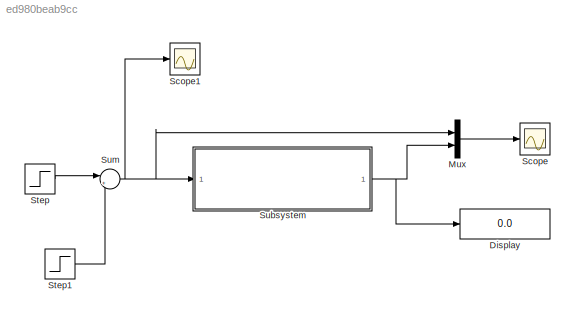
MODEL slx_ed980beab9cc
KIND model
BLOCK [Display] Display
  Decimation = 1
  Lockdown = off
  Ports = [1]
BLOCK [Mux] Mux
  DisplayOption = bar
  Inputs = 2
  Ports = [2, 1]
BLOCK [Scope] Scope
  DataFormat = StructureWithTime
  Floating = off
  LimitDataPoints = off
  NumInputPorts = 1
  Ports = [1]
  SampleInput = on
  SampleTime = 0
  SaveToWorkspace = on
  ShowLegends = off
  YMax = 80
  YMin = 10
BLOCK [Scope] Scope1
  DataFormat = StructureWithTime
  Floating = off
  LimitDataPoints = off
  NumInputPorts = 1
  Ports = [1]
  SampleInput = on
  SampleTime = 0
  SaveName = ScopeData1
  SaveToWorkspace = on
  ShowLegends = off
  YMax = 20
  YMin = 20
BLOCK [Step] Step
  After = 80
  Before = 20
  Time = 5
BLOCK [Step] Step1
  After = 60
  Time = 5.1
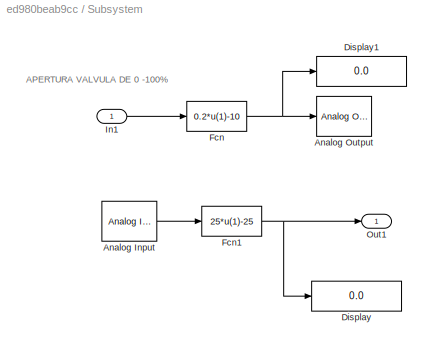
BLOCK [SubSystem] Subsystem
  FunctionWithSeparateData = off
  MaskHideContents = off
  MinAlgLoopOccurrences = off
  Opaque = off
  Ports = [1, 1]
  PropExecContextOutsideSubsystem = off
  RTWSystemCode = Auto
  RequestExecContextInheritance = off
BLOCK [Reference] Subsystem/Analog Input  REF=rtwinlib/Analog Input
  AttributesFormatString = National Instruments\nPCI-6229 [auto]
  Channels = 1
  DataType = 1
  DrvAddress = 4294967295
  DrvName = National_Instruments/PCI-6229
  DrvOptions = [0 0 0 0 0]
  MaxMissedTicks = 10
  Ports = [0, 1]
  RangeMode = 1
  SampleTime = 0.01
  ShowMissedTicks = off
  SourceBlock = rtwinlib/Analog Input
  SourceType = RTWin Analog Input
  VoltRange = 1
  YieldWhenWaiting = off
BLOCK [Reference] Subsystem/Analog Output  REF=rtwinlib/Analog Output
  AttributesFormatString = National Instruments\nPCI-6229 [auto]
  Channels = 1
  DrvAddress = 4294967295
  DrvName = National_Instruments/PCI-6229
  DrvOptions = [0 0 0 0 0]
  FinalValue = []
  InitialValue = []
  MaxMissedTicks = 10
  Ports = [1]
  RangeMode = 1
  SampleTime = 0.01
  ShowMissedTicks = off
  SourceBlock = rtwinlib/Analog Output
  SourceType = RTWin Analog Output
  VoltRange = 1
  YieldWhenWaiting = off
BLOCK [Display] Subsystem/Display
  Decimation = 1
  Lockdown = off
  Ports = [1]
BLOCK [Display] Subsystem/Display1
  Decimation = 1
  Lockdown = off
  Ports = [1]
BLOCK [Fcn] Subsystem/Fcn
  Expr = 0.2*u(1)-10
BLOCK [Fcn] Subsystem/Fcn1
  Expr = 25*u(1)-25
BLOCK [Inport] Subsystem/In1
  IconDisplay = Port number
BLOCK [Outport] Subsystem/Out1
  IconDisplay = Port number
BLOCK [Sum] Sum
  IconShape = round
  InputSameDT = off
  Inputs = |+-
  OutDataTypeStr = Inherit: Inherit via internal rule
  Ports = [2, 1]
  SaturateOnIntegerOverflow = off
ANNOTATION Subsystem: APERTURA VALVULA DE 0 -100%
LINE Mux:1 -> Scope:1
LINE Step1:1 -> Sum:2
LINE Step:1 -> Sum:1
LINE Subsystem/Analog Input:1 -> Subsystem/Fcn1:1
NET Subsystem/Fcn1:1 -> Subsystem/Display:1, Subsystem/Out1:1
NET Subsystem/Fcn:1 -> Subsystem/Analog Output:1, Subsystem/Display1:1
LINE Subsystem/In1:1 -> Subsystem/Fcn:1
NET Subsystem:1 -> Display:1, Mux:2
NET Sum:1 -> Mux:1, Scope1:1, Subsystem:1
note: NET lines group one-source signal fan-out (src -> all destinations, sorted); 1:1 wires keep LINE
